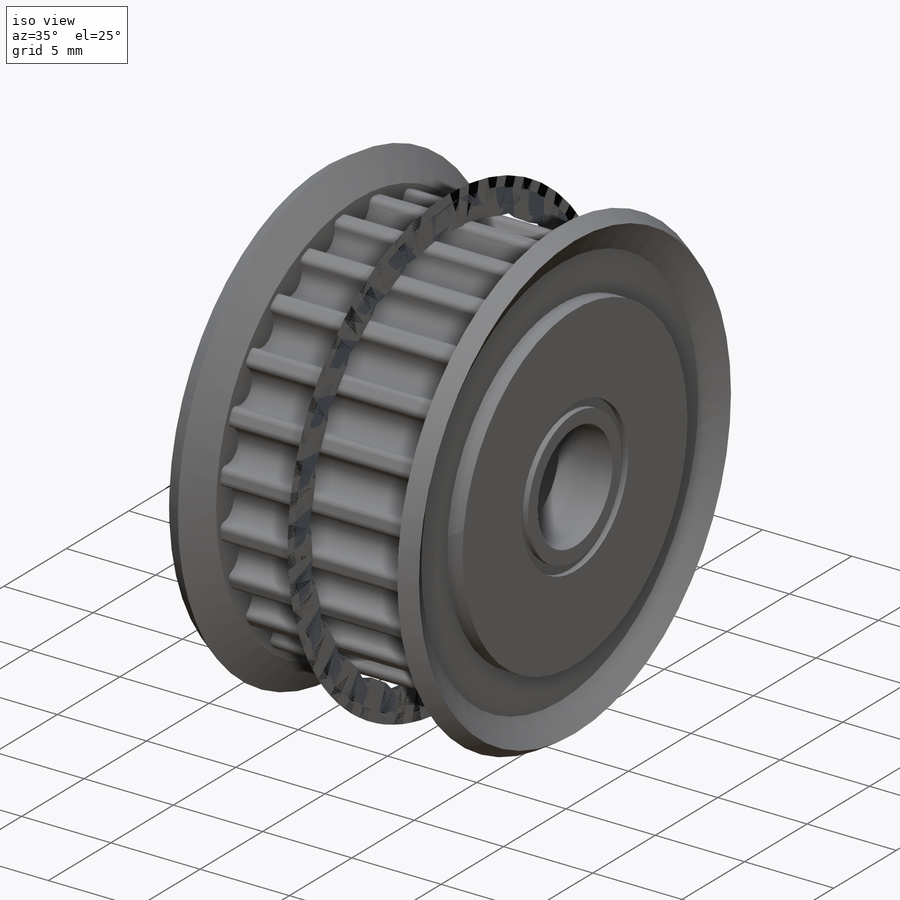
[diagram: iso view]
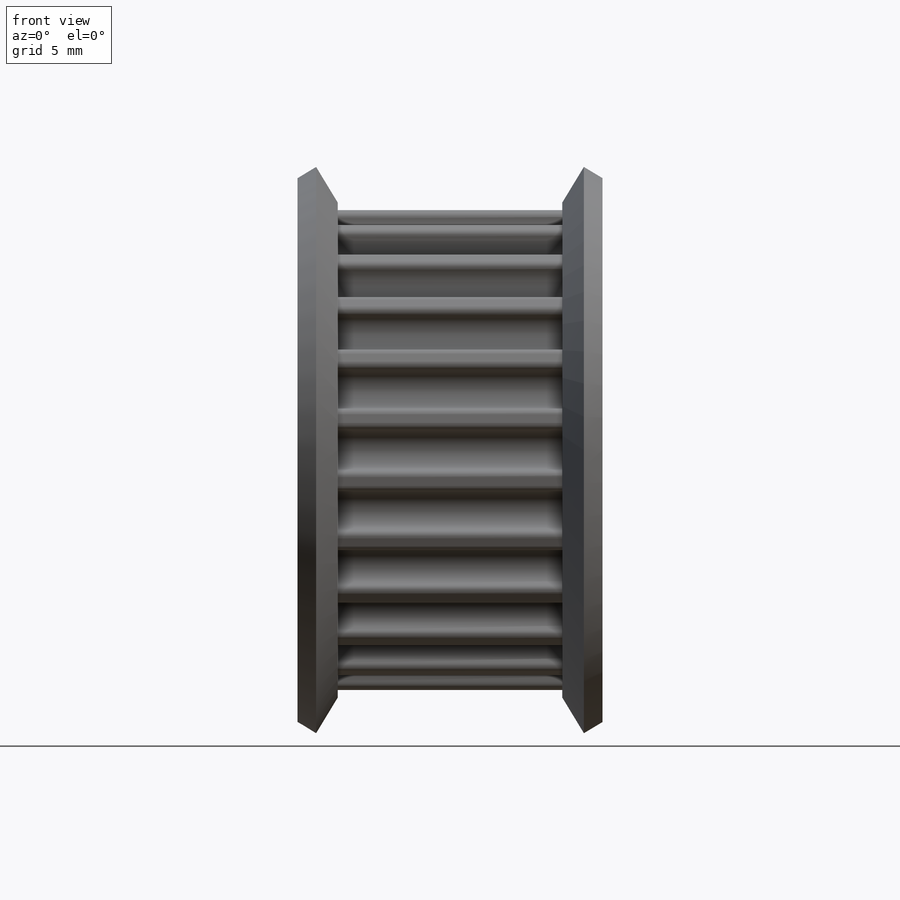
[diagram: front view]
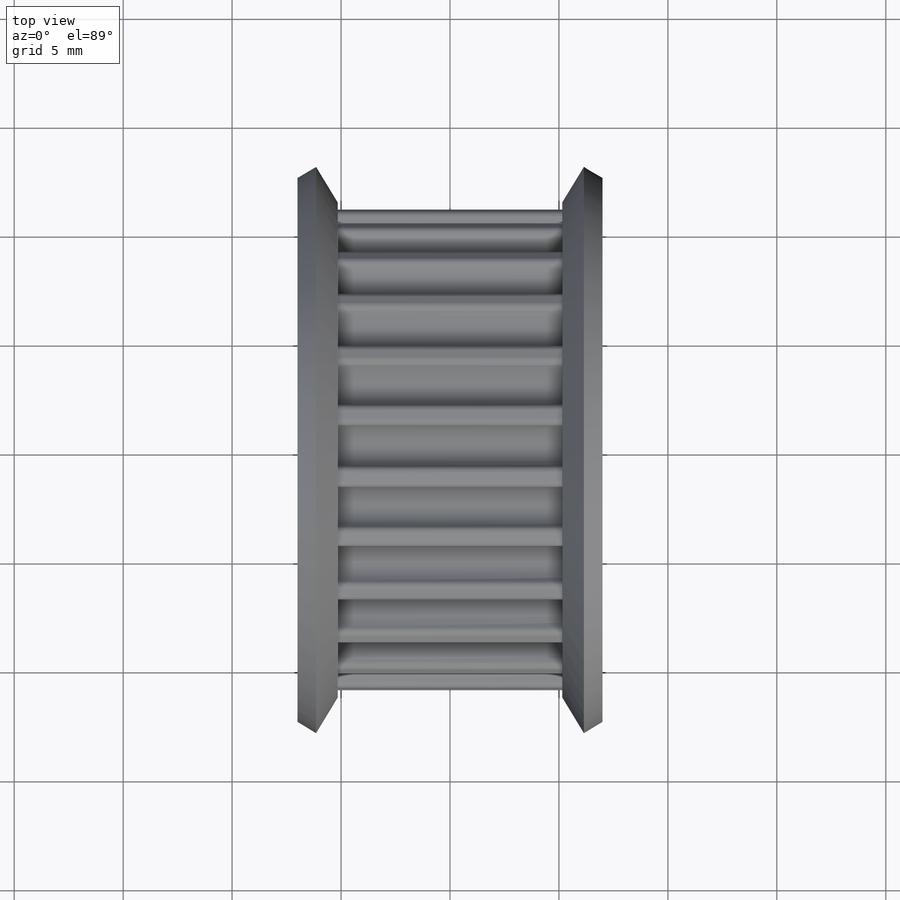
[diagram: top view]
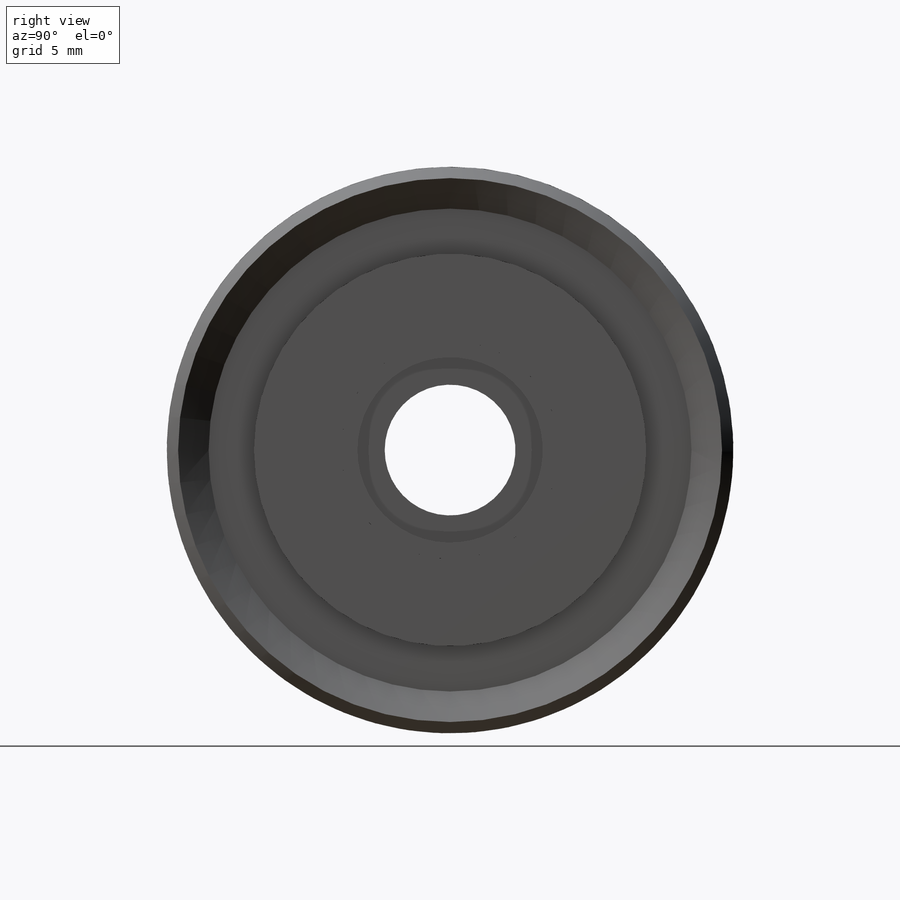
[diagram: right view]
SOLIDWORKS PART (.sldprt)
format: sldprt  version: not decoded by parser v0  size: 509,440 bytes
history: native  units: mm
features: sketch x4, revolve x3, material x1, cut_extrude x1, pattern_circular x1 (+16 scaffold rows collapsed)
feature tree (26):
  scaffold x16  (default folders/planes/origin — collapsed)
  material  "Material <not specified>"
  sketch  "Sketch1"  dims[D1=9.0mm D2=10.0mm D3=22.16mm D4=18.0mm D5=10.3mm D6=14.0mm D7=3.0mm D8=22.92mm]
  revolve  "Revolve1"  Angle=360deg
  sketch  "Sketch4"  dims[D3=0.3mm D1=1.14mm D2=2.5mm]
  cut_extrude  "Cut-Extrude1"  [1 undecoded]
  pattern_circular  "CirPattern1"  Count=24 Angle=360deg
  sketch  "Sketch2"  dims[D1=26.0mm D2=1.0mm]
  revolve  "Revolve2"  Angle=360deg
  sketch  "Sketch5"  dims[D1=6.0mm D2=8.5mm D3=3.0mm D4=0.3mm]
  revolve  "Revolve3"  Angle=360deg
decode coverage: 8 of 9 modeling features carry decoded parameters
note: 1 parameter value undecoded
note: suppression state not decoded; provenance and decode notes live in map.json
